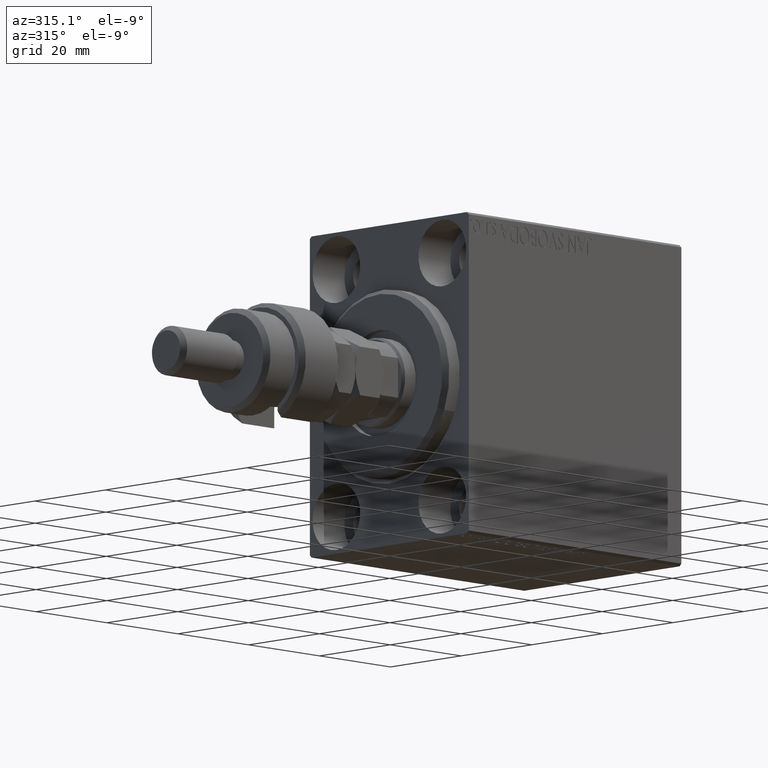
[diagram: clean part render]
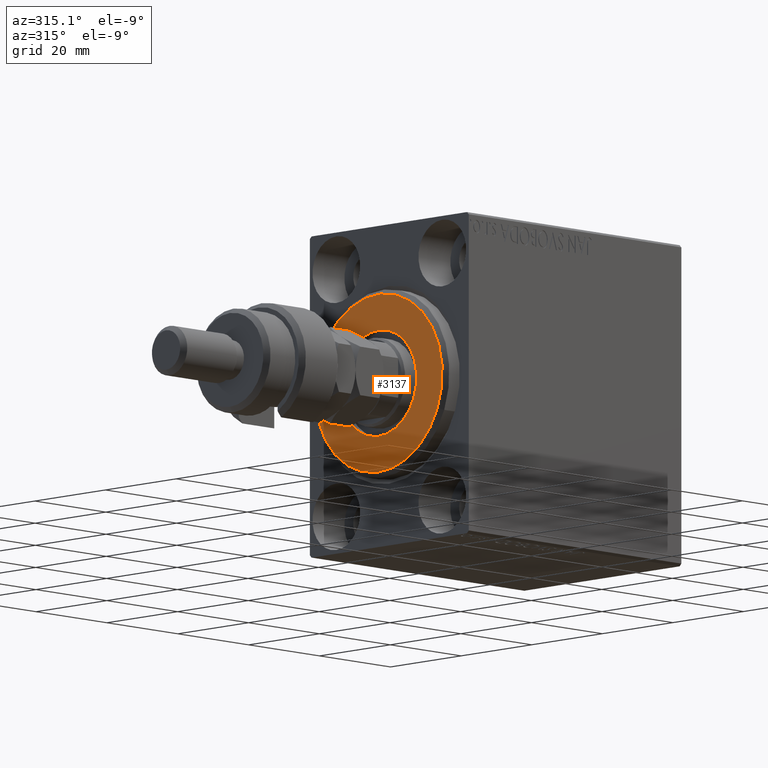
[diagram: same view with one face highlighted and labeled with its STEP entity id]
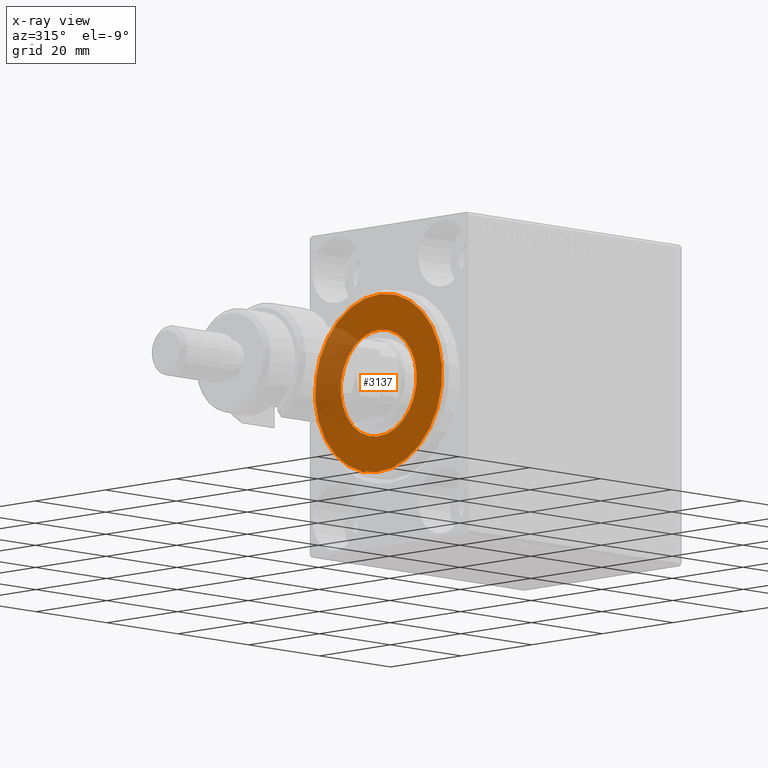
[diagram: x-ray of the same camera — body ghosted, the highlighted face saturated]
A machine part, auxiliary view. The second image highlights one B-rep face of the part: STEP entity #3137.
The next image is the same camera in x-ray: the body ghosted, the highlighted face saturated — about 22% of this face is hidden behind the body in this view.
In plain terms, the highlighted planar face has unit normal (-1, 0, 0).
Its self-contained STEP definition (entity closure, byte-faithful):
#1253 = ORIENTED_EDGE ( 'NONE', *, *, #18921, .T. ) ;
#1781 = EDGE_CURVE ( 'NONE', #8145, #15444, #17845, .T. ) ;
#2778 = AXIS2_PLACEMENT_3D ( 'NONE', #25784, #44643, #12361 ) ;
#3137 = ADVANCED_FACE ( 'NONE', ( #4280, #33032 ), #8058, .T. ) ;
#4280 = FACE_OUTER_BOUND ( 'NONE', #30357, .T. ) ;
#6068 = DIRECTION ( 'NONE',  ( 0.000000000000000000, 0.000000000000000000, -1.000000000000000000 ) ) ;
#6931 = AXIS2_PLACEMENT_3D ( 'NONE', #27572, #45957, #42867 ) ;
#8058 = PLANE ( 'NONE',  #23897 ) ;
#8145 = VERTEX_POINT ( 'NONE', #39066 ) ;
#9754 = CARTESIAN_POINT ( 'NONE',  ( 3.000000000000000000, 2.265596578422602607E-15, -17.99999999999998934 ) ) ;
#12361 = DIRECTION ( 'NONE',  ( 0.000000000000000000, 0.000000000000000000, -1.000000000000000000 ) ) ;
#12472 = CARTESIAN_POINT ( 'NONE',  ( 3.000000000000000000, 0.000000000000000000, 0.000000000000000000 ) ) ;
#14436 = CARTESIAN_POINT ( 'NONE',  ( 3.000000000000000000, 0.000000000000000000, 0.000000000000000000 ) ) ;
#15444 = VERTEX_POINT ( 'NONE', #46251 ) ;
#15817 = AXIS2_PLACEMENT_3D ( 'NONE', #12472, #41205, #6068 ) ;
#17845 = CIRCLE ( 'NONE', #2778, 10.75000000000000000 ) ;
#18921 = EDGE_CURVE ( 'NONE', #15444, #8145, #28009, .T. ) ;
#20052 = CARTESIAN_POINT ( 'NONE',  ( 3.000000000000000000, 0.000000000000000000, 17.99999999999998934 ) ) ;
#21044 = DIRECTION ( 'NONE',  ( 0.000000000000000000, 0.000000000000000000, -1.000000000000000000 ) ) ;
#23897 = AXIS2_PLACEMENT_3D ( 'NONE', #36806, #39079, #28019 ) ;
#24016 = EDGE_CURVE ( 'NONE', #26225, #45431, #28006, .T. ) ;
#25254 = DIRECTION ( 'NONE',  ( -1.000000000000000000, 0.000000000000000000, -0.000000000000000000 ) ) ;
#25784 = CARTESIAN_POINT ( 'NONE',  ( 3.000000000000000000, 0.000000000000000000, 0.000000000000000000 ) ) ;
#26225 = VERTEX_POINT ( 'NONE', #9754 ) ;
#26520 = AXIS2_PLACEMENT_3D ( 'NONE', #14436, #25254, #21044 ) ;
#26576 = ORIENTED_EDGE ( 'NONE', *, *, #1781, .T. ) ;
#27572 = CARTESIAN_POINT ( 'NONE',  ( 3.000000000000000000, 0.000000000000000000, 0.000000000000000000 ) ) ;
#28006 = CIRCLE ( 'NONE', #6931, 17.99999999999998934 ) ;
#28009 = CIRCLE ( 'NONE', #26520, 10.75000000000000000 ) ;
#28019 = DIRECTION ( 'NONE',  ( 0.000000000000000000, 0.000000000000000000, -1.000000000000000000 ) ) ;
#30357 = EDGE_LOOP ( 'NONE', ( #38395, #39752 ) ) ;
#31456 = EDGE_CURVE ( 'NONE', #45431, #26225, #33822, .T. ) ;
#33032 = FACE_BOUND ( 'NONE', #42668, .T. ) ;
#33822 = CIRCLE ( 'NONE', #15817, 17.99999999999998934 ) ;
#36806 = CARTESIAN_POINT ( 'NONE',  ( 3.000000000000000000, 0.000000000000000000, 0.000000000000000000 ) ) ;
#38395 = ORIENTED_EDGE ( 'NONE', *, *, #31456, .T. ) ;
#39066 = CARTESIAN_POINT ( 'NONE',  ( 3.000000000000000000, 1.316495309083404223E-15, -10.75000000000000000 ) ) ;
#39079 = DIRECTION ( 'NONE',  ( 1.000000000000000000, -0.000000000000000000, 0.000000000000000000 ) ) ;
#39752 = ORIENTED_EDGE ( 'NONE', *, *, #24016, .T. ) ;
#41205 = DIRECTION ( 'NONE',  ( 1.000000000000000000, -0.000000000000000000, 0.000000000000000000 ) ) ;
#42668 = EDGE_LOOP ( 'NONE', ( #1253, #26576 ) ) ;
#42867 = DIRECTION ( 'NONE',  ( 0.000000000000000000, 0.000000000000000000, -1.000000000000000000 ) ) ;
#44643 = DIRECTION ( 'NONE',  ( -1.000000000000000000, 0.000000000000000000, -0.000000000000000000 ) ) ;
#45431 = VERTEX_POINT ( 'NONE', #20052 ) ;
#45957 = DIRECTION ( 'NONE',  ( 1.000000000000000000, -0.000000000000000000, 0.000000000000000000 ) ) ;
#46251 = CARTESIAN_POINT ( 'NONE',  ( 3.000000000000000000, 0.000000000000000000, 10.75000000000000000 ) ) ;